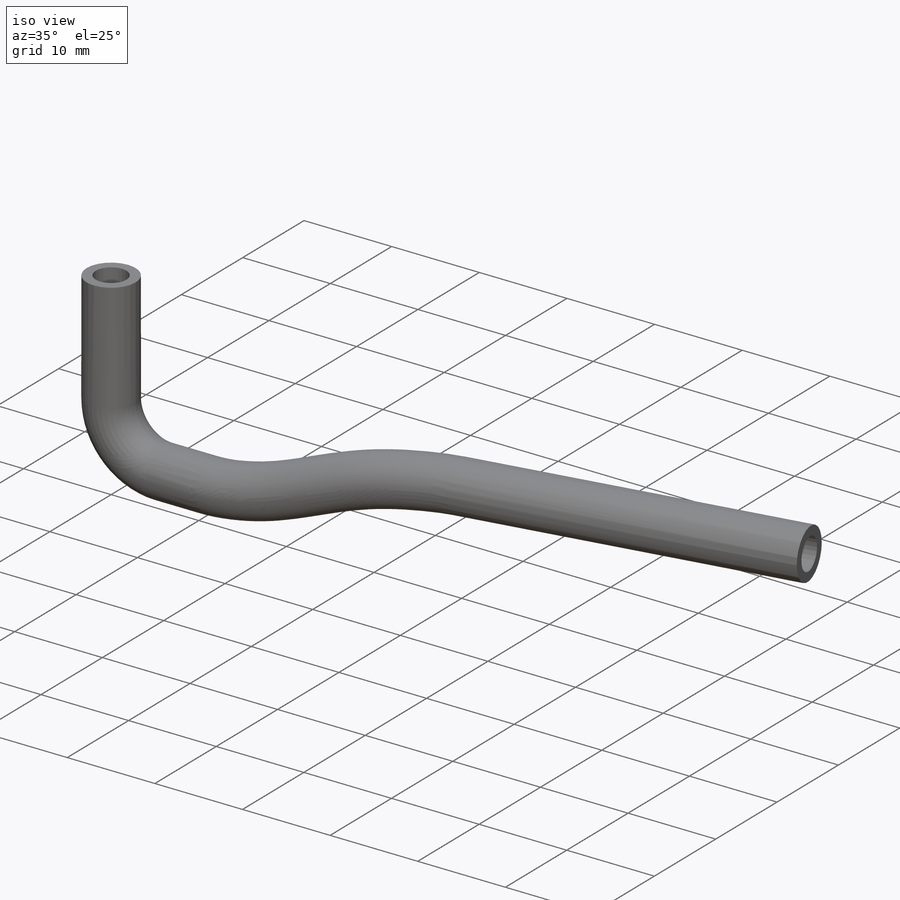
[diagram: iso view]
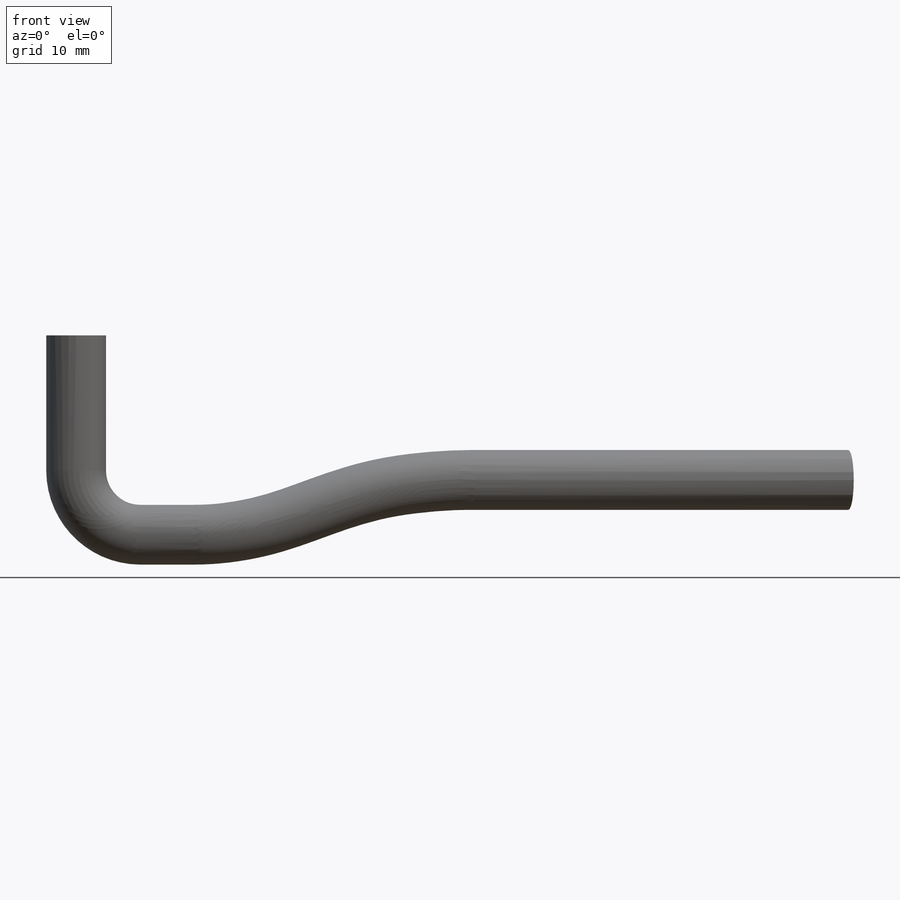
[diagram: front view]
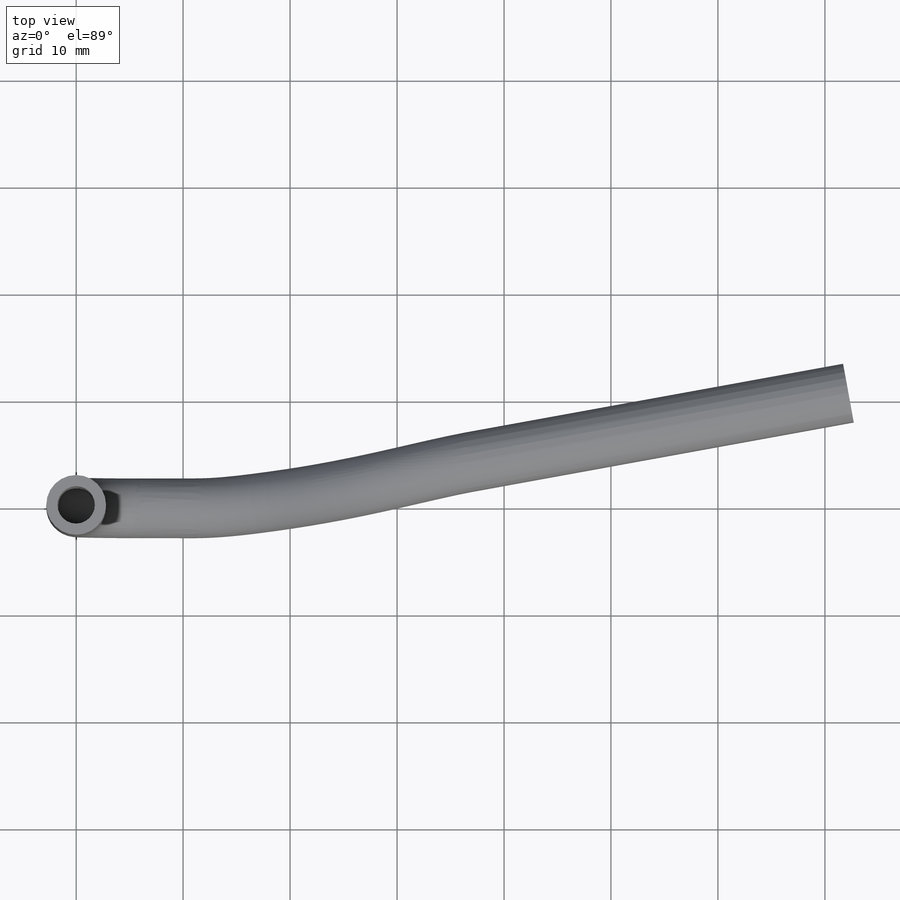
[diagram: top view]
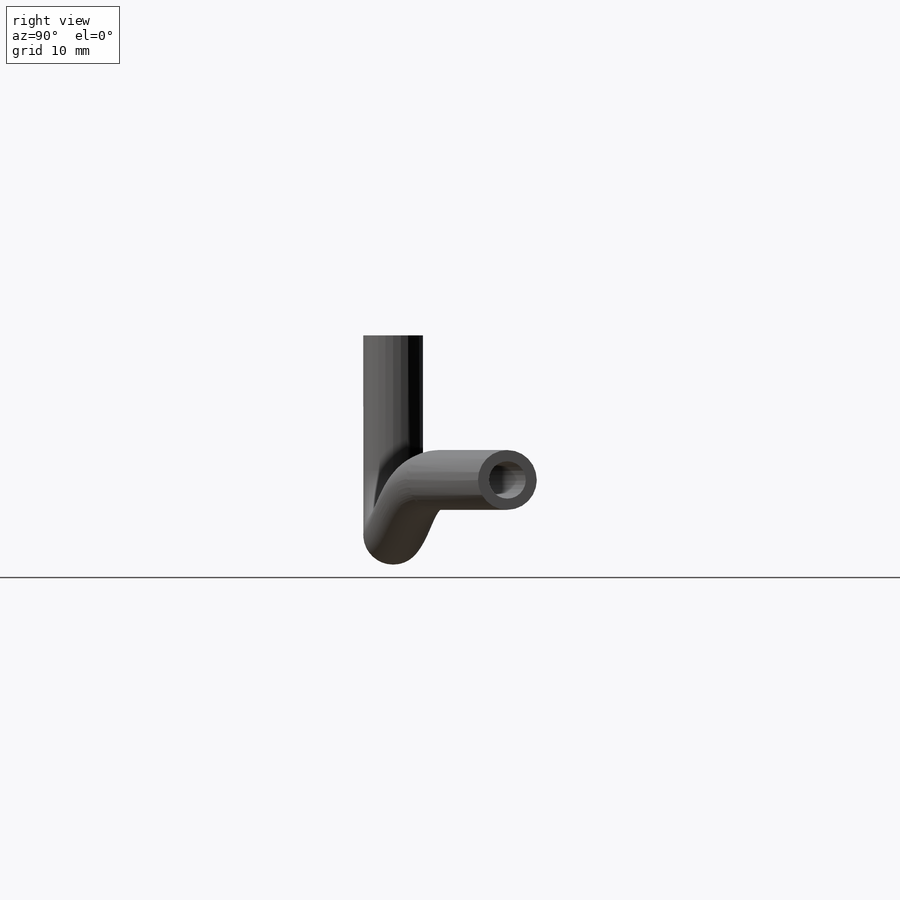
[diagram: right view]
SOLIDWORKS PART (.sldprt)
format: sldprt  version: not decoded by parser v0  size: 357,888 bytes
history: native  units: mm
features: sketch x5, plane x4, sweep x2, material x1 + 3 further entries (+12 scaffold rows collapsed)
feature tree (27):
  scaffold x12  (default folders/planes/origin — collapsed)
  material  "Material <not specified>"
  plane  "Plane1"
  plane  "Plane2"
  plane  "Plane3"
  "Axis2"
  "Axis3"
  sketch  "Sketch1"  dims[c1.D2=7.0mm c1.D1=6.0mm c1.D4=6.0mm c2.D1=5.5mm c2.D2=2.0mm c3.D1=6.0mm c3.D2=5.5mm c3.D3=8.5mm c3.D4=8.5mm c4.D2=8.5mm c4.D3=8.5mm c5.D3=90.0deg c6.D3=10.0mm c6.D2=6.0mm c6.D4=2.0mm c6.D1=~12.63325mm]
  sketch  "Sketch2"  dims[D1=3.5mm D2=5.588mm]
  sweep  "Sweep2"
  plane  "Plane4"
  sketch  "Sketch3"  dims[D1=~0.628763mm D2=~5.120737mm]
  "Axis4"
  sketch  "Sketch4"  dims[D1=0.0mm]
  sketch  "3DSketch1"  dims[D1=1.0mm D2=35.0mm]
  sweep  "Sweep3"
decode coverage: 5 of 7 modeling features carry decoded parameters; 3 rows unclassified (native names shown)
note: ~ marks probable driven/reference dimensions
note: suppression state not decoded; provenance and decode notes live in map.json
